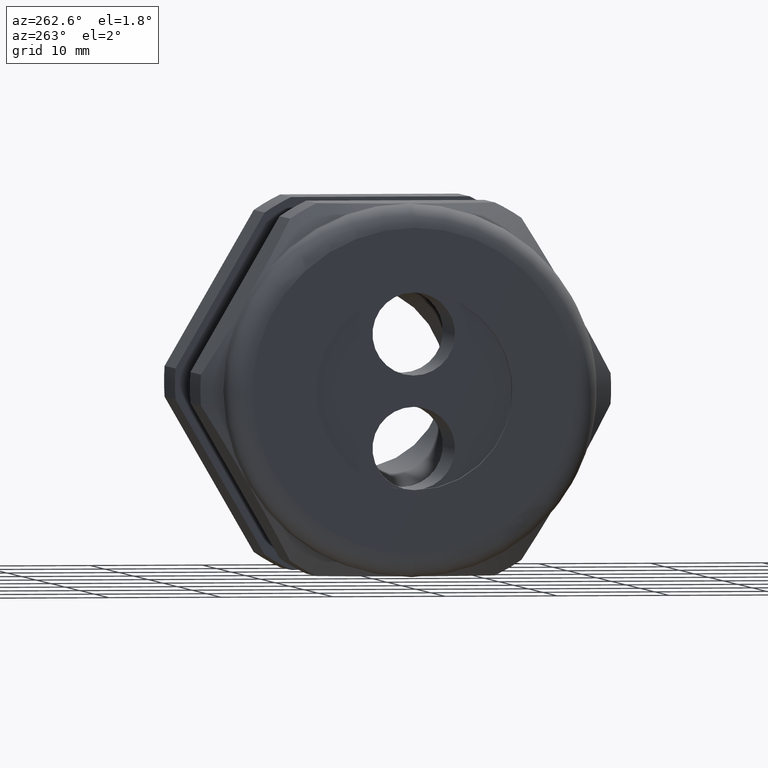
[diagram: clean part render]
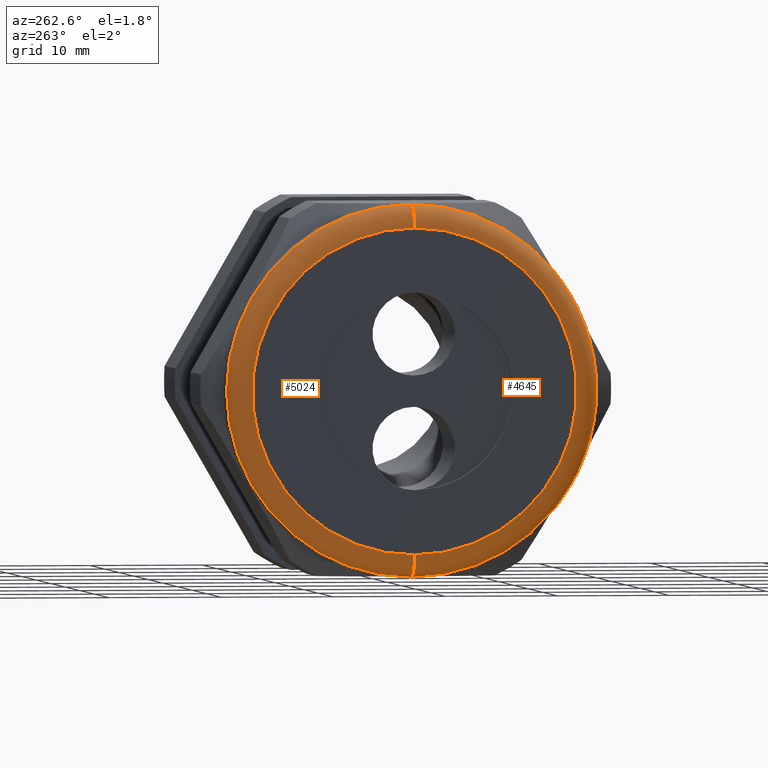
[diagram: same view with one multi-face feature highlighted, each face labeled with its STEP entity id]
A machine part, auxiliary view. The highlighted faces form ONE feature: a constant-radius fillet chain: 2 tangent blend faces with common blend radius 2.032 mm. The faces share edges in the B-rep.
Their STEP definitions:
[1] entity #4645 (Torus):
#514 = EDGE_CURVE ( 'NONE', #5058, #5047, #1897, .T. ) ;
#526 = EDGE_CURVE ( 'NONE', #5062, #5057, #1879, .T. ) ;
#1876 = DIRECTION ( 'NONE',  ( 1.000000000000000000, 0.0000000000000000000, 0.0000000000000000000 ) ) ;
#1877 = AXIS2_PLACEMENT_3D ( 'NONE', #1885, #1876, #1942 ) ;
#1879 = CIRCLE ( 'NONE', #1877, 0.6499999999999999100 ) ;
#1885 = CARTESIAN_POINT ( 'NONE',  ( -1.449999999999999700, 0.0000000000000000000, 0.0000000000000000000 ) ) ;
#1893 = DIRECTION ( 'NONE',  ( 0.0000000000000000000, 0.0000000000000000000, 1.000000000000000000 ) ) ;
#1894 = DIRECTION ( 'NONE',  ( -1.000000000000000000, 0.0000000000000000000, 0.0000000000000000000 ) ) ;
#1895 = CARTESIAN_POINT ( 'NONE',  ( -1.529999999999999800, 0.0000000000000000000, 0.0000000000000000000 ) ) ;
#1896 = AXIS2_PLACEMENT_3D ( 'NONE', #1895, #1894, #1893 ) ;
#1897 = CIRCLE ( 'NONE', #1896, 0.5699999999999999500 ) ;
#1942 = DIRECTION ( 'NONE',  ( 0.0000000000000000000, 0.0000000000000000000, 1.000000000000000000 ) ) ;
#2774 = DIRECTION ( 'NONE',  ( 0.0000000000000000000, 0.0000000000000000000, 1.000000000000000000 ) ) ;
#2775 = DIRECTION ( 'NONE',  ( -1.000000000000000000, 0.0000000000000000000, 0.0000000000000000000 ) ) ;
#2776 = CARTESIAN_POINT ( 'NONE',  ( -1.449999999999999700, 0.0000000000000000000, 0.0000000000000000000 ) ) ;
#2777 = AXIS2_PLACEMENT_3D ( 'NONE', #2776, #2775, #2774 ) ;
#2778 = TOROIDAL_SURFACE ( 'NONE', #2777, 0.5699999999999999500, 0.08000000000000000200 ) ;
#2783 = FACE_OUTER_BOUND ( 'NONE', #4642, .T. ) ;
#3464 = DIRECTION ( 'NONE',  ( 0.0000000000000000000, -1.224646799147353900E-016, 1.000000000000000000 ) ) ;
#3465 = DIRECTION ( 'NONE',  ( 0.0000000000000000000, 1.000000000000000000, 1.224646799147353200E-016 ) ) ;
#3466 = CARTESIAN_POINT ( 'NONE',  ( -1.449999999999999700, 6.980486755139912600E-017, -0.5699999999999999500 ) ) ;
#3467 = AXIS2_PLACEMENT_3D ( 'NONE', #3466, #3465, #3464 ) ;
#3468 = CIRCLE ( 'NONE', #3467, 0.07999999999999996000 ) ;
#3470 = CARTESIAN_POINT ( 'NONE',  ( -1.529999999999999800, 7.470345474798854000E-017, -0.5699999999999999500 ) ) ;
#3471 = CARTESIAN_POINT ( 'NONE',  ( -1.449999999999999700, 0.0000000000000000000, -0.6499999999999999100 ) ) ;
#3483 = DIRECTION ( 'NONE',  ( 0.0000000000000000000, 0.0000000000000000000, -1.000000000000000000 ) ) ;
#3484 = DIRECTION ( 'NONE',  ( 0.0000000000000000000, -1.000000000000000000, 0.0000000000000000000 ) ) ;
#3485 = CARTESIAN_POINT ( 'NONE',  ( -1.449999999999999700, 0.0000000000000000000, 0.5699999999999999500 ) ) ;
#3486 = AXIS2_PLACEMENT_3D ( 'NONE', #3485, #3484, #3483 ) ;
#3487 = CIRCLE ( 'NONE', #3486, 0.07999999999999996000 ) ;
#3488 = CARTESIAN_POINT ( 'NONE',  ( -1.529999999999999800, 0.0000000000000000000, 0.5699999999999999500 ) ) ;
#3524 = CARTESIAN_POINT ( 'NONE',  ( -1.449999999999999700, 7.960204194457794200E-017, 0.6499999999999999100 ) ) ;
#4394 = ORIENTED_EDGE ( 'NONE', *, *, #514, .F. ) ;
#4637 = ORIENTED_EDGE ( 'NONE', *, *, #526, .F. ) ;
#4638 = ORIENTED_EDGE ( 'NONE', *, *, #5048, .T. ) ;
#4642 = EDGE_LOOP ( 'NONE', ( #4643, #4637, #4638, #4394 ) ) ;
#4643 = ORIENTED_EDGE ( 'NONE', *, *, #5060, .F. ) ;
#4645 = ADVANCED_FACE ( 'NONE', ( #2783 ), #2778, .T. ) ;
#5047 = VERTEX_POINT ( 'NONE', #3488 ) ;
#5048 = EDGE_CURVE ( 'NONE', #5062, #5047, #3487, .T. ) ;
#5057 = VERTEX_POINT ( 'NONE', #3471 ) ;
#5058 = VERTEX_POINT ( 'NONE', #3470 ) ;
#5060 = EDGE_CURVE ( 'NONE', #5057, #5058, #3468, .T. ) ;
#5062 = VERTEX_POINT ( 'NONE', #3524 ) ;
[2] entity #5024 (Torus):
#3403 = DIRECTION ( 'NONE',  ( 0.0000000000000000000, 0.0000000000000000000, 1.000000000000000000 ) ) ;
#3404 = DIRECTION ( 'NONE',  ( -1.000000000000000000, 0.0000000000000000000, 0.0000000000000000000 ) ) ;
#3405 = AXIS2_PLACEMENT_3D ( 'NONE', #3408, #3404, #3403 ) ;
#3406 = TOROIDAL_SURFACE ( 'NONE', #3405, 0.5699999999999999500, 0.08000000000000000200 ) ;
#3408 = CARTESIAN_POINT ( 'NONE',  ( -1.449999999999999700, 0.0000000000000000000, 0.0000000000000000000 ) ) ;
#3409 = FACE_OUTER_BOUND ( 'NONE', #5056, .T. ) ;
#3428 = CIRCLE ( 'NONE', #3492, 0.5699999999999999500 ) ;
#3460 = DIRECTION ( 'NONE',  ( 1.000000000000000000, 0.0000000000000000000, 0.0000000000000000000 ) ) ;
#3461 = CARTESIAN_POINT ( 'NONE',  ( -1.449999999999999700, 0.0000000000000000000, 0.0000000000000000000 ) ) ;
#3462 = AXIS2_PLACEMENT_3D ( 'NONE', #3461, #3460, #3525 ) ;
#3463 = CIRCLE ( 'NONE', #3462, 0.6499999999999999100 ) ;
#3464 = DIRECTION ( 'NONE',  ( 0.0000000000000000000, -1.224646799147353900E-016, 1.000000000000000000 ) ) ;
#3465 = DIRECTION ( 'NONE',  ( 0.0000000000000000000, 1.000000000000000000, 1.224646799147353200E-016 ) ) ;
#3466 = CARTESIAN_POINT ( 'NONE',  ( -1.449999999999999700, 6.980486755139912600E-017, -0.5699999999999999500 ) ) ;
#3467 = AXIS2_PLACEMENT_3D ( 'NONE', #3466, #3465, #3464 ) ;
#3468 = CIRCLE ( 'NONE', #3467, 0.07999999999999996000 ) ;
#3470 = CARTESIAN_POINT ( 'NONE',  ( -1.529999999999999800, 7.470345474798854000E-017, -0.5699999999999999500 ) ) ;
#3471 = CARTESIAN_POINT ( 'NONE',  ( -1.449999999999999700, 0.0000000000000000000, -0.6499999999999999100 ) ) ;
#3483 = DIRECTION ( 'NONE',  ( 0.0000000000000000000, 0.0000000000000000000, -1.000000000000000000 ) ) ;
#3484 = DIRECTION ( 'NONE',  ( 0.0000000000000000000, -1.000000000000000000, 0.0000000000000000000 ) ) ;
#3485 = CARTESIAN_POINT ( 'NONE',  ( -1.449999999999999700, 0.0000000000000000000, 0.5699999999999999500 ) ) ;
#3486 = AXIS2_PLACEMENT_3D ( 'NONE', #3485, #3484, #3483 ) ;
#3487 = CIRCLE ( 'NONE', #3486, 0.07999999999999996000 ) ;
#3488 = CARTESIAN_POINT ( 'NONE',  ( -1.529999999999999800, 0.0000000000000000000, 0.5699999999999999500 ) ) ;
#3489 = DIRECTION ( 'NONE',  ( 0.0000000000000000000, 0.0000000000000000000, 1.000000000000000000 ) ) ;
#3490 = DIRECTION ( 'NONE',  ( -1.000000000000000000, 0.0000000000000000000, 0.0000000000000000000 ) ) ;
#3491 = CARTESIAN_POINT ( 'NONE',  ( -1.529999999999999800, 0.0000000000000000000, 0.0000000000000000000 ) ) ;
#3492 = AXIS2_PLACEMENT_3D ( 'NONE', #3491, #3490, #3489 ) ;
#3524 = CARTESIAN_POINT ( 'NONE',  ( -1.449999999999999700, 7.960204194457794200E-017, 0.6499999999999999100 ) ) ;
#3525 = DIRECTION ( 'NONE',  ( 0.0000000000000000000, 0.0000000000000000000, 1.000000000000000000 ) ) ;
#5024 = ADVANCED_FACE ( 'NONE', ( #3409 ), #3406, .T. ) ;
#5046 = EDGE_CURVE ( 'NONE', #5047, #5058, #3428, .T. ) ;
#5047 = VERTEX_POINT ( 'NONE', #3488 ) ;
#5048 = EDGE_CURVE ( 'NONE', #5062, #5047, #3487, .T. ) ;
#5050 = ORIENTED_EDGE ( 'NONE', *, *, #5048, .F. ) ;
#5051 = ORIENTED_EDGE ( 'NONE', *, *, #5061, .F. ) ;
#5055 = ORIENTED_EDGE ( 'NONE', *, *, #5046, .F. ) ;
#5056 = EDGE_LOOP ( 'NONE', ( #5051, #5059, #5055, #5050 ) ) ;
#5057 = VERTEX_POINT ( 'NONE', #3471 ) ;
#5058 = VERTEX_POINT ( 'NONE', #3470 ) ;
#5059 = ORIENTED_EDGE ( 'NONE', *, *, #5060, .T. ) ;
#5060 = EDGE_CURVE ( 'NONE', #5057, #5058, #3468, .T. ) ;
#5061 = EDGE_CURVE ( 'NONE', #5057, #5062, #3463, .T. ) ;
#5062 = VERTEX_POINT ( 'NONE', #3524 ) ;